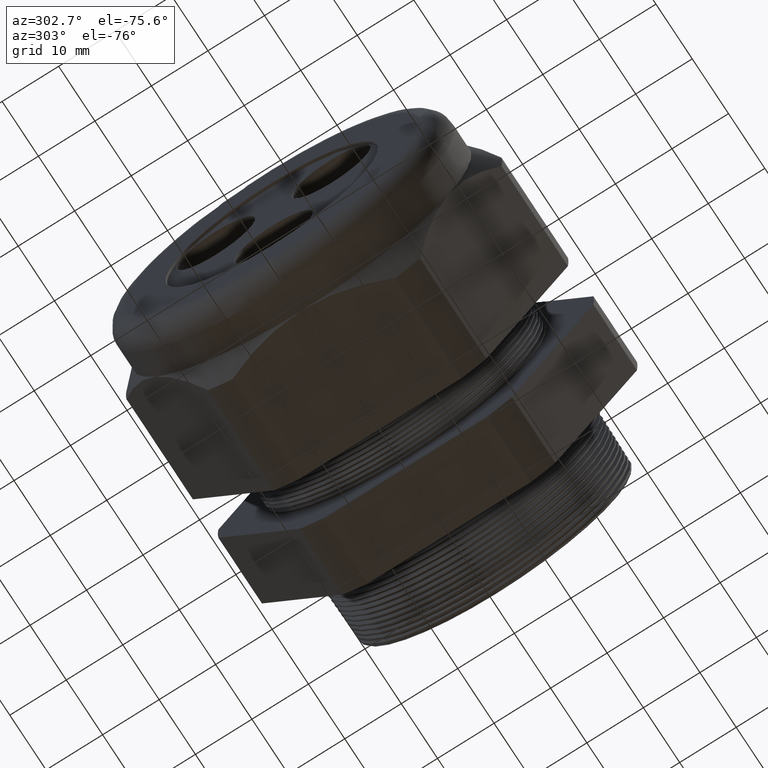
[diagram: clean part render]
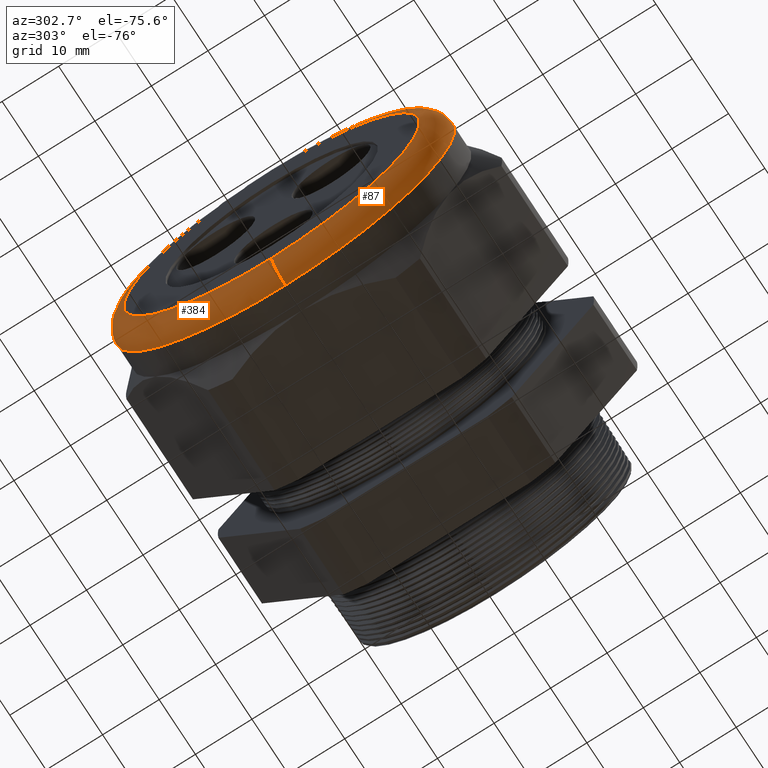
[diagram: same view with one multi-face feature highlighted, each face labeled with its STEP entity id]
A machine part, auxiliary view. The highlighted faces form ONE feature: a constant-radius fillet chain: 2 tangent blend faces with common blend radius 3.81 mm. The faces share edges in the B-rep.
Their STEP definitions:
[1] entity #384 (Torus):
#25 = DIRECTION ( 'NONE',  ( 0.0000000000000000000, 0.0000000000000000000, 1.000000000000000000 ) ) ;
#27 = DIRECTION ( 'NONE',  ( 1.000000000000000000, 0.0000000000000000000, 0.0000000000000000000 ) ) ;
#36 = CARTESIAN_POINT ( 'NONE',  ( -2.089999999999999400, 0.0000000000000000000, 0.0000000000000000000 ) ) ;
#40 = AXIS2_PLACEMENT_3D ( 'NONE', #36, #27, #25 ) ;
#384 = ADVANCED_FACE ( 'NONE', ( #2273 ), #2271, .T. ) ;
#385 = EDGE_LOOP ( 'NONE', ( #439, #443, #446, #449 ) ) ;
#439 = ORIENTED_EDGE ( 'NONE', *, *, #440, .F. ) ;
#440 = EDGE_CURVE ( 'NONE', #441, #442, #2355, .T. ) ;
#441 = VERTEX_POINT ( 'NONE', #2415 ) ;
#442 = VERTEX_POINT ( 'NONE', #2414 ) ;
#443 = ORIENTED_EDGE ( 'NONE', *, *, #444, .T. ) ;
#444 = EDGE_CURVE ( 'NONE', #441, #445, #2413, .T. ) ;
#445 = VERTEX_POINT ( 'NONE', #2408 ) ;
#446 = ORIENTED_EDGE ( 'NONE', *, *, #447, .F. ) ;
#447 = EDGE_CURVE ( 'NONE', #448, #445, #2407, .T. ) ;
#448 = VERTEX_POINT ( 'NONE', #2402 ) ;
#449 = ORIENTED_EDGE ( 'NONE', *, *, #450, .F. ) ;
#450 = EDGE_CURVE ( 'NONE', #442, #448, #2401, .T. ) ;
#2268 = DIRECTION ( 'NONE',  ( 0.0000000000000000000, 0.0000000000000000000, 1.000000000000000000 ) ) ;
#2269 = DIRECTION ( 'NONE',  ( -1.000000000000000000, 0.0000000000000000000, 0.0000000000000000000 ) ) ;
#2270 = AXIS2_PLACEMENT_3D ( 'NONE', #2272, #2269, #2268 ) ;
#2271 = TOROIDAL_SURFACE ( 'NONE', #2270, 1.030000000000000000, 0.1499999999999999900 ) ;
#2272 = CARTESIAN_POINT ( 'NONE',  ( -2.089999999999999400, 0.0000000000000000000, 0.0000000000000000000 ) ) ;
#2273 = FACE_OUTER_BOUND ( 'NONE', #385, .T. ) ;
#2355 = CIRCLE ( 'NONE', #40, 1.179999999999999900 ) ;
#2397 = DIRECTION ( 'NONE',  ( 0.0000000000000000000, 0.0000000000000000000, -1.000000000000000000 ) ) ;
#2398 = DIRECTION ( 'NONE',  ( 0.0000000000000000000, -1.000000000000000000, 0.0000000000000000000 ) ) ;
#2399 = CARTESIAN_POINT ( 'NONE',  ( -2.089999999999999400, 0.0000000000000000000, 1.030000000000000000 ) ) ;
#2400 = AXIS2_PLACEMENT_3D ( 'NONE', #2399, #2398, #2397 ) ;
#2401 = CIRCLE ( 'NONE', #2400, 0.1500000000000000500 ) ;
#2402 = CARTESIAN_POINT ( 'NONE',  ( -2.239999999999999800, 0.0000000000000000000, 1.030000000000000000 ) ) ;
#2403 = DIRECTION ( 'NONE',  ( 0.0000000000000000000, 0.0000000000000000000, 1.000000000000000000 ) ) ;
#2404 = DIRECTION ( 'NONE',  ( -1.000000000000000000, 0.0000000000000000000, 0.0000000000000000000 ) ) ;
#2405 = CARTESIAN_POINT ( 'NONE',  ( -2.239999999999999800, 0.0000000000000000000, 0.0000000000000000000 ) ) ;
#2406 = AXIS2_PLACEMENT_3D ( 'NONE', #2405, #2404, #2403 ) ;
#2407 = CIRCLE ( 'NONE', #2406, 1.030000000000000000 ) ;
#2408 = CARTESIAN_POINT ( 'NONE',  ( -2.239999999999999800, 1.353234713057825400E-016, -1.030000000000000000 ) ) ;
#2409 = DIRECTION ( 'NONE',  ( 0.0000000000000000000, -1.224646799147352500E-016, 1.000000000000000000 ) ) ;
#2410 = DIRECTION ( 'NONE',  ( 0.0000000000000000000, 1.000000000000000000, 1.224646799147353200E-016 ) ) ;
#2411 = CARTESIAN_POINT ( 'NONE',  ( -2.089999999999999400, 1.261386203121773700E-016, -1.030000000000000000 ) ) ;
#2412 = AXIS2_PLACEMENT_3D ( 'NONE', #2411, #2410, #2409 ) ;
#2413 = CIRCLE ( 'NONE', #2412, 0.1500000000000000500 ) ;
#2414 = CARTESIAN_POINT ( 'NONE',  ( -2.089999999999999400, 1.445083222993876800E-016, 1.179999999999999900 ) ) ;
#2415 = CARTESIAN_POINT ( 'NONE',  ( -2.089999999999999400, 0.0000000000000000000, -1.179999999999999900 ) ) ;
[2] entity #87 (Torus):
#85 = EDGE_LOOP ( 'NONE', ( #88, #90, #116, #117 ) ) ;
#87 = ADVANCED_FACE ( 'NONE', ( #645 ), #644, .T. ) ;
#88 = ORIENTED_EDGE ( 'NONE', *, *, #444, .F. ) ;
#90 = ORIENTED_EDGE ( 'NONE', *, *, #760, .F. ) ;
#116 = ORIENTED_EDGE ( 'NONE', *, *, #450, .T. ) ;
#117 = ORIENTED_EDGE ( 'NONE', *, *, #5322, .F. ) ;
#441 = VERTEX_POINT ( 'NONE', #2415 ) ;
#442 = VERTEX_POINT ( 'NONE', #2414 ) ;
#444 = EDGE_CURVE ( 'NONE', #441, #445, #2413, .T. ) ;
#445 = VERTEX_POINT ( 'NONE', #2408 ) ;
#448 = VERTEX_POINT ( 'NONE', #2402 ) ;
#450 = EDGE_CURVE ( 'NONE', #442, #448, #2401, .T. ) ;
#640 = DIRECTION ( 'NONE',  ( 0.0000000000000000000, 0.0000000000000000000, 1.000000000000000000 ) ) ;
#641 = DIRECTION ( 'NONE',  ( -1.000000000000000000, 0.0000000000000000000, 0.0000000000000000000 ) ) ;
#642 = CARTESIAN_POINT ( 'NONE',  ( -2.089999999999999400, 0.0000000000000000000, 0.0000000000000000000 ) ) ;
#643 = AXIS2_PLACEMENT_3D ( 'NONE', #642, #641, #640 ) ;
#644 = TOROIDAL_SURFACE ( 'NONE', #643, 1.030000000000000000, 0.1499999999999999900 ) ;
#645 = FACE_OUTER_BOUND ( 'NONE', #85, .T. ) ;
#760 = EDGE_CURVE ( 'NONE', #442, #441, #2535, .T. ) ;
#2397 = DIRECTION ( 'NONE',  ( 0.0000000000000000000, 0.0000000000000000000, -1.000000000000000000 ) ) ;
#2398 = DIRECTION ( 'NONE',  ( 0.0000000000000000000, -1.000000000000000000, 0.0000000000000000000 ) ) ;
#2399 = CARTESIAN_POINT ( 'NONE',  ( -2.089999999999999400, 0.0000000000000000000, 1.030000000000000000 ) ) ;
#2400 = AXIS2_PLACEMENT_3D ( 'NONE', #2399, #2398, #2397 ) ;
#2401 = CIRCLE ( 'NONE', #2400, 0.1500000000000000500 ) ;
#2402 = CARTESIAN_POINT ( 'NONE',  ( -2.239999999999999800, 0.0000000000000000000, 1.030000000000000000 ) ) ;
#2408 = CARTESIAN_POINT ( 'NONE',  ( -2.239999999999999800, 1.353234713057825400E-016, -1.030000000000000000 ) ) ;
#2409 = DIRECTION ( 'NONE',  ( 0.0000000000000000000, -1.224646799147352500E-016, 1.000000000000000000 ) ) ;
#2410 = DIRECTION ( 'NONE',  ( 0.0000000000000000000, 1.000000000000000000, 1.224646799147353200E-016 ) ) ;
#2411 = CARTESIAN_POINT ( 'NONE',  ( -2.089999999999999400, 1.261386203121773700E-016, -1.030000000000000000 ) ) ;
#2412 = AXIS2_PLACEMENT_3D ( 'NONE', #2411, #2410, #2409 ) ;
#2413 = CIRCLE ( 'NONE', #2412, 0.1500000000000000500 ) ;
#2414 = CARTESIAN_POINT ( 'NONE',  ( -2.089999999999999400, 1.445083222993876800E-016, 1.179999999999999900 ) ) ;
#2415 = CARTESIAN_POINT ( 'NONE',  ( -2.089999999999999400, 0.0000000000000000000, -1.179999999999999900 ) ) ;
#2532 = DIRECTION ( 'NONE',  ( 0.0000000000000000000, 0.0000000000000000000, 1.000000000000000000 ) ) ;
#2533 = DIRECTION ( 'NONE',  ( 1.000000000000000000, 0.0000000000000000000, 0.0000000000000000000 ) ) ;
#2534 = AXIS2_PLACEMENT_3D ( 'NONE', #2540, #2533, #2532 ) ;
#2535 = CIRCLE ( 'NONE', #2534, 1.179999999999999900 ) ;
#2540 = CARTESIAN_POINT ( 'NONE',  ( -2.089999999999999400, 0.0000000000000000000, 0.0000000000000000000 ) ) ;
#5007 = DIRECTION ( 'NONE',  ( 0.0000000000000000000, 0.0000000000000000000, 1.000000000000000000 ) ) ;
#5008 = DIRECTION ( 'NONE',  ( -1.000000000000000000, 0.0000000000000000000, 0.0000000000000000000 ) ) ;
#5009 = CARTESIAN_POINT ( 'NONE',  ( -2.239999999999999800, 0.0000000000000000000, 0.0000000000000000000 ) ) ;
#5010 = AXIS2_PLACEMENT_3D ( 'NONE', #5009, #5008, #5007 ) ;
#5014 = CIRCLE ( 'NONE', #5010, 1.030000000000000000 ) ;
#5322 = EDGE_CURVE ( 'NONE', #445, #448, #5014, .T. ) ;